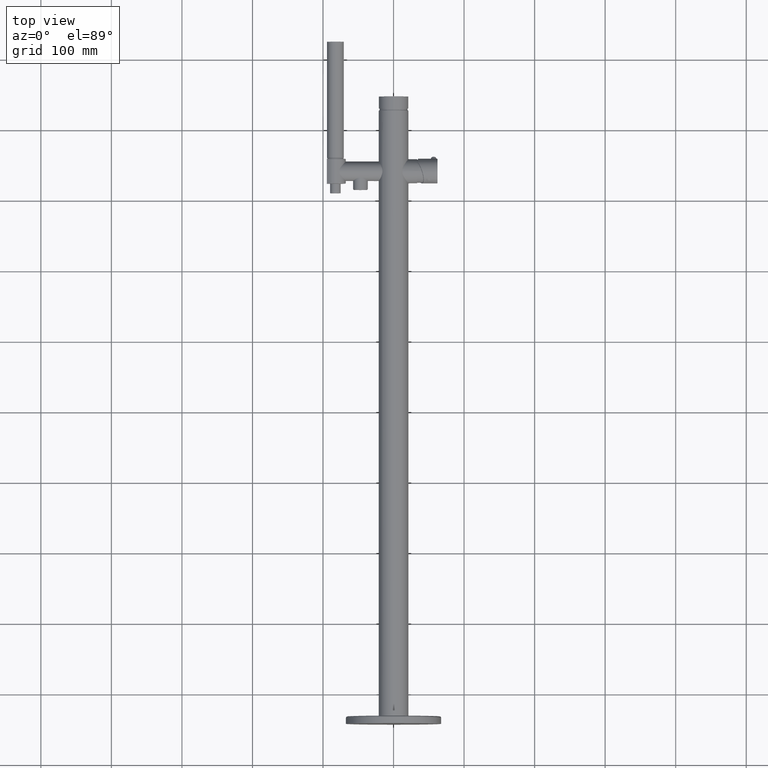
[diagram: clean part render]
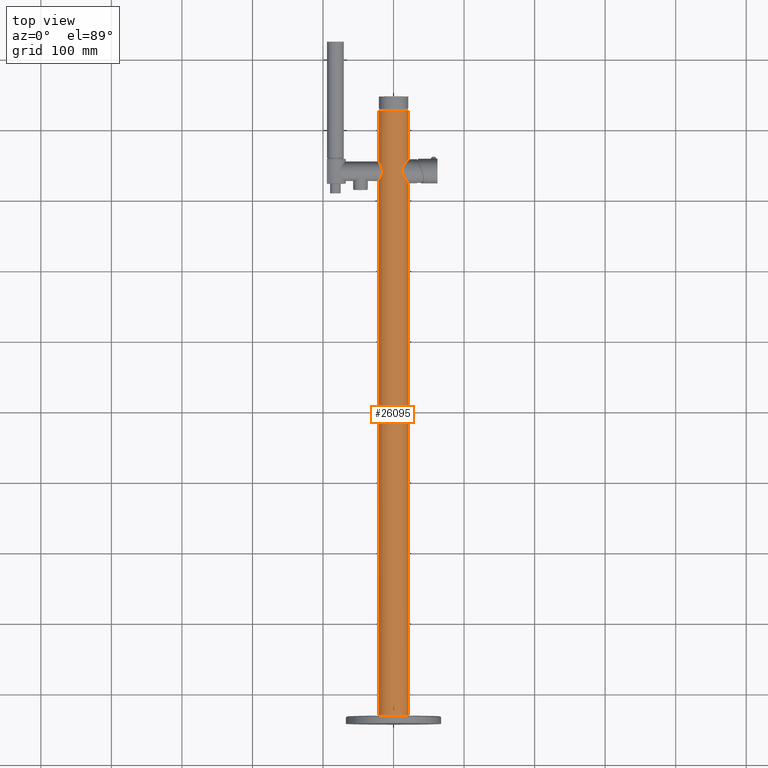
[diagram: same view with one face highlighted and labeled with its STEP entity id]
A machine part, top view. The second image highlights one B-rep face of the part: STEP entity #26095.
In plain terms, the highlighted cylindrical surface (edge-blend (fillet) strip) has radius 21 mm, axis along (0, -1, 0).
Its self-contained STEP definition (entity closure, byte-faithful):
#10192=CARTESIAN_POINT('',(0.E0,6.45E1,0.E0));
#10193=DIRECTION('',(0.E0,-1.E0,0.E0));
#10194=DIRECTION('',(1.E0,0.E0,0.E0));
#10195=AXIS2_PLACEMENT_3D('',#10192,#10193,#10194);
#10197=CARTESIAN_POINT('',(-2.1E1,8.237257359313E2,0.E0));
#10198=CARTESIAN_POINT('',(-2.1E1,8.237257359313E2,1.194688515093E-1));
#10199=CARTESIAN_POINT('',(-2.099796158246E1,8.237288263789E2,
3.584826285599E-1));
#10200=CARTESIAN_POINT('',(-2.098877035781E1,8.237427664905E2,
7.172506742478E-1));
#10201=CARTESIAN_POINT('',(-2.097345072110E1,8.237660190770E2,
1.075789666941E0));
#10202=CARTESIAN_POINT('',(-2.095198431254E1,8.237986387286E2,
1.434366022529E0));
#10203=CARTESIAN_POINT('',(-2.092436405059E1,8.238406741350E2,
1.792785321803E0));
#10204=CARTESIAN_POINT('',(-2.089059177179E1,8.238921719107E2,
2.150899778978E0));
#10205=CARTESIAN_POINT('',(-2.085062134319E1,8.239532641663E2,
2.508966122048E0));
#10206=CARTESIAN_POINT('',(-2.080444853463E1,8.240240321877E2,
2.866775812998E0));
#10207=CARTESIAN_POINT('',(-2.075200650268E1,8.241046675400E2,
3.224577579985E0));
#10208=CARTESIAN_POINT('',(-2.069331593232E1,8.241952429975E2,
3.581958538787E0));
#10209=CARTESIAN_POINT('',(-2.062841164650E1,8.242958246734E2,
3.938592802111E0));
#10210=CARTESIAN_POINT('',(-2.055722208176E1,8.244066615892E2,
4.294722076045E0));
#10211=CARTESIAN_POINT('',(-2.047978833567E1,8.245278474956E2,
4.649991556038E0));
#10212=CARTESIAN_POINT('',(-2.039605553244E1,8.246596478786E2,
5.004517974205E0));
#10213=CARTESIAN_POINT('',(-2.030610684259E1,8.248021352261E2,
5.357831871324E0));
#10214=CARTESIAN_POINT('',(-2.020995137122E1,8.249555233275E2,
5.709842969902E0));
#10215=CARTESIAN_POINT('',(-2.010759010195E1,8.251200698188E2,
6.060469091842E0));
#10216=CARTESIAN_POINT('',(-1.999919192236E1,8.252957928208E2,
6.409113253447E0));
#10217=CARTESIAN_POINT('',(-1.988481666124E1,8.254829181888E2,
6.755620257362E0));
#10218=CARTESIAN_POINT('',(-1.976460063044E1,8.256815853498E2,
7.099629064757E0));
#10219=CARTESIAN_POINT('',(-1.963874654347E1,8.258918617833E2,
7.440668383378E0));
#10220=CARTESIAN_POINT('',(-1.950747967904E1,8.261138173063E2,
7.778288839666E0));
#10221=CARTESIAN_POINT('',(-1.937109601327E1,8.263474436919E2,
8.111948309642E0));
#10222=CARTESIAN_POINT('',(-1.922990369334E1,8.265927562648E2,
8.441163339024E0));
#10223=CARTESIAN_POINT('',(-1.908436670427E1,8.268495407573E2,
8.765194253950E0));
#10224=CARTESIAN_POINT('',(-1.893481785334E1,8.271178582125E2,
9.083693233710E0));
#10225=CARTESIAN_POINT('',(-1.878186821956E1,8.273973194503E2,
9.395802645858E0));
#10226=CARTESIAN_POINT('',(-1.862622879384E1,8.276873710183E2,
9.700618455581E0));
#10227=CARTESIAN_POINT('',(-1.846843012631E1,8.279878198431E2,
9.997704929382E0));
#10228=CARTESIAN_POINT('',(-1.830917631141E1,8.282981825065E2,
1.028637173554E1));
#10229=CARTESIAN_POINT('',(-1.814950951533E1,8.286173027336E2,
1.056545417331E1));
#10230=CARTESIAN_POINT('',(-1.799022637881E1,8.289444635714E2,
1.083435962481E1));
#10231=CARTESIAN_POINT('',(-1.783203173289E1,8.292791290467E2,
1.109270861491E1));
#10232=CARTESIAN_POINT('',(-1.767594011863E1,8.296200611560E2,
1.133968681277E1));
#10233=CARTESIAN_POINT('',(-1.752278566732E1,8.299663090529E2,
1.157484830522E1));
#10234=CARTESIAN_POINT('',(-1.737342162065E1,8.303167834794E2,
1.179775696746E1));
#10235=CARTESIAN_POINT('',(-1.722869962031E1,8.306702454429E2,
1.200801846552E1));
#10236=CARTESIAN_POINT('',(-1.708914837740E1,8.310261022629E2,
1.220571377379E1));
#10237=CARTESIAN_POINT('',(-1.695535821811E1,8.313835121773E2,
1.239080916465E1));
#10238=CARTESIAN_POINT('',(-1.682802520557E1,8.317411484142E2,
1.256311503409E1));
#10239=CARTESIAN_POINT('',(-1.670752992834E1,8.320983335592E2,
1.272284777265E1));
#10240=CARTESIAN_POINT('',(-1.659411011515E1,8.324546832130E2,
1.287036112433E1));
#10241=CARTESIAN_POINT('',(-1.648797992562E1,8.328097835484E2,
1.300598366890E1));
#10242=CARTESIAN_POINT('',(-1.638938914567E1,8.331629212574E2,
1.312994962773E1));
#10243=CARTESIAN_POINT('',(-1.629833034803E1,8.335141602502E2,
1.324276390136E1));
#10244=CARTESIAN_POINT('',(-1.621491260163E1,8.338630439648E2,
1.334473038730E1));
#10245=CARTESIAN_POINT('',(-1.613907860447E1,8.342096648151E2,
1.343630753004E1));
#10246=CARTESIAN_POINT('',(-1.607077870117E1,8.345540967664E2,
1.351789226133E1));
#10247=CARTESIAN_POINT('',(-1.601000620308E1,8.348960962799E2,
1.358978601703E1));
#10248=CARTESIAN_POINT('',(-1.595661780658E1,8.352361501497E2,
1.365240964511E1));
#10249=CARTESIAN_POINT('',(-1.591056693037E1,8.355742563393E2,
1.370603002170E1));
#10250=CARTESIAN_POINT('',(-1.587178068864E1,8.359104904013E2,
1.375091028748E1));
#10251=CARTESIAN_POINT('',(-1.584014342456E1,8.362454575089E2,
1.378732965030E1));
#10252=CARTESIAN_POINT('',(-1.581562253518E1,8.365791184521E2,
1.381544122905E1));
#10253=CARTESIAN_POINT('',(-1.579815160217E1,8.369117631268E2,
1.383540926023E1));
#10254=CARTESIAN_POINT('',(-1.578768006284E1,8.372439800277E2,
1.384735315143E1));
#10255=CARTESIAN_POINT('',(-1.578419573960E1,8.375757286827E2,
1.385132335272E1));
#10256=CARTESIAN_POINT('',(-1.578767981168E1,8.379074827926E2,
1.384735343768E1));
#10257=CARTESIAN_POINT('',(-1.579815157936E1,8.382397105148E2,
1.383540928686E1));
#10258=CARTESIAN_POINT('',(-1.581562336539E1,8.385723669431E2,
1.381544027917E1));
#10259=CARTESIAN_POINT('',(-1.584014423465E1,8.389060236311E2,
1.378732871943E1));
#10260=CARTESIAN_POINT('',(-1.587178167344E1,8.392409910103E2,
1.375090915169E1));
#10261=CARTESIAN_POINT('',(-1.591056821915E1,8.395772255966E2,
1.370602852511E1));
#10262=CARTESIAN_POINT('',(-1.595661872071E1,8.399153279414E2,
1.365240857711E1));
#10263=CARTESIAN_POINT('',(-1.601000784883E1,8.402553855452E2,
1.358978408066E1));
#10264=CARTESIAN_POINT('',(-1.607078046435E1,8.405973843426E2,
1.351789016317E1));
#10265=CARTESIAN_POINT('',(-1.613908009920E1,8.409418143093E2,
1.343630573843E1));
#10266=CARTESIAN_POINT('',(-1.621491536908E1,8.412884399919E2,
1.334472702578E1));
#10267=CARTESIAN_POINT('',(-1.629833227742E1,8.416373192736E2,
1.324276152416E1));
#10268=CARTESIAN_POINT('',(-1.638939158620E1,8.419885597329E2,
1.312994658672E1));
#10269=CARTESIAN_POINT('',(-1.648798266259E1,8.423416977302E2,
1.300598019596E1));
#10270=CARTESIAN_POINT('',(-1.659411245202E1,8.426967962606E2,
1.287035811732E1));
#10271=CARTESIAN_POINT('',(-1.670753401646E1,8.430531508504E2,
1.272284241718E1));
#10272=CARTESIAN_POINT('',(-1.682802992428E1,8.434103370534E2,
1.256310871664E1));
#10273=CARTESIAN_POINT('',(-1.695536325508E1,8.437679734797E2,
1.239080227580E1));
#10274=CARTESIAN_POINT('',(-1.708915400272E1,8.441253843151E2,
1.220570591218E1));
#10275=CARTESIAN_POINT('',(-1.722870706090E1,8.444812450385E2,
1.200800781591E1));
#10276=CARTESIAN_POINT('',(-1.737342990497E1,8.448347081628E2,
1.179774475430E1));
#10277=CARTESIAN_POINT('',(-1.752279225548E1,8.451851779710E2,
1.157483833505E1));
#10278=CARTESIAN_POINT('',(-1.767594817993E1,8.455314286187E2,
1.133967425329E1));
#10279=CARTESIAN_POINT('',(-1.783203865851E1,8.458723576873E2,
1.109269748091E1));
#10280=CARTESIAN_POINT('',(-1.799023476601E1,8.462070258011E2,
1.083434573205E1));
#10281=CARTESIAN_POINT('',(-1.814951819578E1,8.465341866872E2,
1.056543924357E1));
#10282=CARTESIAN_POINT('',(-1.830918320002E1,8.468533029223E2,
1.028635944633E1));
#10283=CARTESIAN_POINT('',(-1.846843642521E1,8.471636641495E2,
9.997693296615E0));
#10284=CARTESIAN_POINT('',(-1.862623503392E1,8.474641125908E2,
9.700606471643E0));
#10285=CARTESIAN_POINT('',(-1.878187320731E1,8.477541615836E2,
9.395792608375E0));
#10286=CARTESIAN_POINT('',(-1.893482052053E1,8.480336184772E2,
9.083687674859E0));
#10287=CARTESIAN_POINT('',(-1.908437123185E1,8.483019391759E2,
8.765184449733E0));
#10288=CARTESIAN_POINT('',(-1.922990842945E1,8.485587238894E2,
8.441152560309E0));
#10289=CARTESIAN_POINT('',(-1.937110144348E1,8.488040375446E2,
8.111935381931E0));
#10290=CARTESIAN_POINT('',(-1.950748537294E1,8.490376642426E2,
7.778274550030E0));
#10291=CARTESIAN_POINT('',(-1.963875156252E1,8.492596185134E2,
7.440655140193E0));
#10292=CARTESIAN_POINT('',(-1.976460569597E1,8.494698949259E2,
7.099614937618E0));
#10293=CARTESIAN_POINT('',(-1.988482081503E1,8.496685605051E2,
6.755608063361E0));
#10294=CARTESIAN_POINT('',(-1.999919717132E1,8.498556875902E2,
6.409096889421E0));
#10295=CARTESIAN_POINT('',(-2.010759402003E1,8.500314083637E2,
6.060456037503E0));
#10296=CARTESIAN_POINT('',(-2.020995540329E1,8.501959549942E2,
5.709828759794E0));
#10297=CARTESIAN_POINT('',(-2.030611104187E1,8.503493433105E2,
5.357815949538E0));
#10298=CARTESIAN_POINT('',(-2.039605920773E1,8.504918297868E2,
5.004503000739E0));
#10299=CARTESIAN_POINT('',(-2.047979213566E1,8.506236303314E2,
4.649974856330E0));
#10300=CARTESIAN_POINT('',(-2.055722572788E1,8.507448159648E2,
4.294704660707E0));
#10301=CARTESIAN_POINT('',(-2.062841535880E1,8.508556529553E2,
3.938573395864E0));
#10302=CARTESIAN_POINT('',(-2.069331895146E1,8.509562335314E2,
3.581940900032E0));
#10303=CARTESIAN_POINT('',(-2.075200800755E1,8.510468066384E2,
3.224567635087E0));
#10304=CARTESIAN_POINT('',(-2.080444933102E1,8.511274408969E2,
2.866769939129E0));
#10305=CARTESIAN_POINT('',(-2.085062199619E1,8.511982086960E2,
2.508960786728E0));
#10306=CARTESIAN_POINT('',(-2.089059280218E1,8.512593015255E2,
2.150890107117E0));
#10307=CARTESIAN_POINT('',(-2.092436518179E1,8.513107994505E2,
1.792771987223E0));
#10308=CARTESIAN_POINT('',(-2.095198480717E1,8.513528338858E2,
1.434358423796E0));
#10309=CARTESIAN_POINT('',(-2.097345103258E1,8.513854532586E2,
1.075783423320E0));
#10310=CARTESIAN_POINT('',(-2.098877043489E1,8.514087054889E2,
7.172478123593E-1));
#10311=CARTESIAN_POINT('',(-2.099796158114E1,8.514226454817E2,
3.584822203011E-1));
#10312=CARTESIAN_POINT('',(-2.1E1,8.514257359313E2,1.194688829872E-1));
#10313=CARTESIAN_POINT('',(-2.1E1,8.514257359313E2,0.E0));
#10315=CARTESIAN_POINT('',(2.1E1,8.546757359313E2,3.477275162954E-14));
#10316=CARTESIAN_POINT('',(2.1E1,8.546757359313E2,1.307847896728E-1));
#10317=CARTESIAN_POINT('',(2.099755689081E1,8.546727357554E2,
3.924803590351E-1));
#10318=CARTESIAN_POINT('',(2.098653692197E1,8.546592006586E2,
7.853556378513E-1));
#10319=CARTESIAN_POINT('',(2.096815567047E1,8.546366161400E2,1.178150633188E0));
#10320=CARTESIAN_POINT('',(2.094238706865E1,8.546049379944E2,1.571048464448E0));
#10321=CARTESIAN_POINT('',(2.090919392466E1,8.545641032045E2,1.964057564334E0));
#10322=CARTESIAN_POINT('',(2.086857358564E1,8.545140859441E2,2.356839570341E0));
#10323=CARTESIAN_POINT('',(2.082046869812E1,8.544547875357E2,2.749629385181E0));
#10324=CARTESIAN_POINT('',(2.076476071294E1,8.543860276083E2,3.142840903767E0));
#10325=CARTESIAN_POINT('',(2.070142468317E1,8.543077346132E2,3.536109833773E0));
#10326=CARTESIAN_POINT('',(2.063038796288E1,8.542197711623E2,3.929446723815E0));
#10327=CARTESIAN_POINT('',(2.055155974956E1,8.541219694512E2,4.322875052143E0));
#10328=CARTESIAN_POINT('',(2.046489376307E1,8.540142084778E2,4.716188358554E0));
#10329=CARTESIAN_POINT('',(2.037025032757E1,8.538962415800E2,5.109570415629E0));
#10330=CARTESIAN_POINT('',(2.026756282035E1,8.537679023326E2,5.502840846990E0));
#10331=CARTESIAN_POINT('',(2.015666013482E1,8.536288816365E2,5.896186843871E0));
#10332=CARTESIAN_POINT('',(2.003751577445E1,8.534790377368E2,6.289230561473E0));
#10333=CARTESIAN_POINT('',(1.991014395716E1,8.533182670607E2,6.681554590691E0));
#10334=CARTESIAN_POINT('',(1.977434115537E1,8.531461749035E2,7.073406236354E0));
#10335=CARTESIAN_POINT('',(1.963005529220E1,8.529625379829E2,7.464524030178E0));
#10336=CARTESIAN_POINT('',(1.947731099101E1,8.527672115098E2,7.854498310913E0));
#10337=CARTESIAN_POINT('',(1.931594044366E1,8.525597807141E2,8.243409291920E0));
#10338=CARTESIAN_POINT('',(1.914608823975E1,8.523402059371E2,8.630593923933E0));
#10339=CARTESIAN_POINT('',(1.896765953108E1,8.521081110725E2,9.016001277551E0));
#10340=CARTESIAN_POINT('',(1.878067509191E1,8.518632345964E2,9.399313949336E0));
#10341=CARTESIAN_POINT('',(1.858523865872E1,8.516053869335E2,9.780089072686E0));
#10342=CARTESIAN_POINT('',(1.838150749923E1,8.513344098046E2,1.015784154043E1));
#10343=CARTESIAN_POINT('',(1.816958472825E1,8.510500265889E2,1.053223497975E1));
#10344=CARTESIAN_POINT('',(1.794984033148E1,8.507522679687E2,1.090252298396E1));
#10345=CARTESIAN_POINT('',(1.772272464919E1,8.504412274476E2,1.126794797392E1));
#10346=CARTESIAN_POINT('',(1.748858981406E1,8.501168086410E2,1.162800645046E1));
#10347=CARTESIAN_POINT('',(1.724793530734E1,8.497790557108E2,1.198205273728E1));
#10348=CARTESIAN_POINT('',(1.700130970671E1,8.494280092979E2,1.232945591340E1));
#10349=CARTESIAN_POINT('',(1.675010623432E1,8.490648642013E2,1.266856819236E1));
#10350=CARTESIAN_POINT('',(1.649536293796E1,8.486902882198E2,1.299846455922E1));
#10351=CARTESIAN_POINT('',(1.623817668052E1,8.483049939513E2,1.331828669912E1));
#10352=CARTESIAN_POINT('',(1.597972767859E1,8.479097921971E2,1.362722659418E1));
#10353=CARTESIAN_POINT('',(1.572102342048E1,8.475051892019E2,1.392479690896E1));
#10354=CARTESIAN_POINT('',(1.546383441872E1,8.470928740014E2,1.420976568741E1));
#10355=CARTESIAN_POINT('',(1.520995150890E1,8.466746638065E2,1.448108267412E1));
#10356=CARTESIAN_POINT('',(1.496109357755E1,8.462523695775E2,1.473792628217E1));
#10357=CARTESIAN_POINT('',(1.471932523912E1,8.458285910039E2,1.497926779866E1));
#10358=CARTESIAN_POINT('',(1.448603075904E1,8.454049931427E2,1.520487063265E1));
#10359=CARTESIAN_POINT('',(1.426262563109E1,8.449835310188E2,1.541450350604E1));
#10360=CARTESIAN_POINT('',(1.405000609615E1,8.445654471095E2,1.560843131215E1));
#10361=CARTESIAN_POINT('',(1.384908081920E1,8.441522476146E2,1.578687173457E1));
#10362=CARTESIAN_POINT('',(1.366045679468E1,8.437451260254E2,1.595026999982E1));
#10363=CARTESIAN_POINT('',(1.348438399585E1,8.433447444761E2,1.609930709689E1));
#10364=CARTESIAN_POINT('',(1.332112449824E1,8.429520323080E2,1.623457271914E1));
#10365=CARTESIAN_POINT('',(1.317045096639E1,8.425669560767E2,1.635697603703E1));
#10366=CARTESIAN_POINT('',(1.303214234600E1,8.421895652672E2,1.646732287725E1));
#10367=CARTESIAN_POINT('',(1.290589582914E1,8.418197909718E2,1.656639961787E1));
#10368=CARTESIAN_POINT('',(1.279126999844E1,8.414571829917E2,1.665501988707E1));
#10369=CARTESIAN_POINT('',(1.272236325007E1,8.412200783379E2,1.670757758447E1));
#10370=CARTESIAN_POINT('',(1.268974979235E1,8.411027388787E2,1.673231156201E1));
#10372=DIRECTION('',(0.E0,-1.E0,-1.108018650664E-14));
#10373=VECTOR('',#10372,7.054005894827E0);
#10374=CARTESIAN_POINT('',(1.268974979235E1,8.411027388787E2,1.673231156201E1));
#10375=LINE('',#10374,#10373);
#10376=CARTESIAN_POINT('',(1.268974979235E1,8.340487329839E2,1.673231156201E1));
#10377=CARTESIAN_POINT('',(1.272236431236E1,8.339313897027E2,1.670757677883E1));
#10378=CARTESIAN_POINT('',(1.279127242091E1,8.336942809229E2,1.665501802661E1));
#10379=CARTESIAN_POINT('',(1.290589613845E1,8.333316802354E2,1.656639936293E1));
#10380=CARTESIAN_POINT('',(1.303213890299E1,8.329619165063E2,1.646732558859E1));
#10381=CARTESIAN_POINT('',(1.317044519240E1,8.325845311268E2,1.635698067450E1));
#10382=CARTESIAN_POINT('',(1.332111652966E1,8.321994593266E2,1.623457925073E1));
#10383=CARTESIAN_POINT('',(1.348437681869E1,8.318067440150E2,1.609931312476E1));
#10384=CARTESIAN_POINT('',(1.366045346824E1,8.314063530491E2,1.595027287288E1));
#10385=CARTESIAN_POINT('',(1.384908055892E1,8.309992247007E2,1.578687198514E1));
#10386=CARTESIAN_POINT('',(1.405000739857E1,8.305860221849E2,1.560843012654E1));
#10387=CARTESIAN_POINT('',(1.426262351004E1,8.301679449783E2,1.541450545120E1));
#10388=CARTESIAN_POINT('',(1.448602983931E1,8.297464803491E2,1.520487153597E1));
#10389=CARTESIAN_POINT('',(1.471932687405E1,8.293228779142E2,1.497926620949E1));
#10390=CARTESIAN_POINT('',(1.496109446319E1,8.288991008296E2,1.473792534104E1));
#10391=CARTESIAN_POINT('',(1.520994713248E1,8.284768154412E2,1.448108721437E1));
#10392=CARTESIAN_POINT('',(1.546382962878E1,8.280586055703E2,1.420977096008E1));
#10393=CARTESIAN_POINT('',(1.572102616683E1,8.276462782237E2,1.392479390704E1));
#10394=CARTESIAN_POINT('',(1.597973329281E1,8.272416710037E2,1.362721999389E1));
#10395=CARTESIAN_POINT('',(1.623817803427E1,8.268464759238E2,1.331828495637E1));
#10396=CARTESIAN_POINT('',(1.649535805002E1,8.264611909586E2,1.299847064188E1));
#10397=CARTESIAN_POINT('',(1.675009491593E1,8.260866241976E2,1.266858306540E1));
#10398=CARTESIAN_POINT('',(1.700129657556E1,8.257234813907E2,1.232947402989E1));
#10399=CARTESIAN_POINT('',(1.724792378786E1,8.253724324276E2,1.198206932384E1));
#10400=CARTESIAN_POINT('',(1.748857682802E1,8.250346813441E2,1.162802591470E1));
#10401=CARTESIAN_POINT('',(1.772271011911E1,8.247102644243E2,1.126797083606E1));
#10402=CARTESIAN_POINT('',(1.794982839560E1,8.243992201405E2,1.090254268517E1));
#10403=CARTESIAN_POINT('',(1.816957382789E1,8.241014599698E2,1.053225378638E1));
#10404=CARTESIAN_POINT('',(1.838149695040E1,8.238170761500E2,1.015786061963E1));
#10405=CARTESIAN_POINT('',(1.858522805803E1,8.235460989704E2,9.780109211100E0));
#10406=CARTESIAN_POINT('',(1.878066523519E1,8.232882502185E2,9.399333669142E0));
#10407=CARTESIAN_POINT('',(1.896765048866E1,8.230433725919E2,9.016020283364E0));
#10408=CARTESIAN_POINT('',(1.914607899468E1,8.228112779113E2,8.630614455387E0));
#10409=CARTESIAN_POINT('',(1.931593323180E1,8.225917004407E2,8.243426250748E0));
#10410=CARTESIAN_POINT('',(1.947730438431E1,8.223842688233E2,7.854514679064E0));
#10411=CARTESIAN_POINT('',(1.963004867332E1,8.221889423236E2,7.464541422722E0));
#10412=CARTESIAN_POINT('',(1.977433436936E1,8.220053055785E2,7.073425137714E0));
#10413=CARTESIAN_POINT('',(1.991013640391E1,8.218332143541E2,6.681577089333E0));
#10414=CARTESIAN_POINT('',(2.003750987819E1,8.216724415513E2,6.289249479957E0));
#10415=CARTESIAN_POINT('',(2.015665613644E1,8.215225952445E2,5.896200611166E0));
#10416=CARTESIAN_POINT('',(2.026755980023E1,8.213835733095E2,5.502852011043E0));
#10417=CARTESIAN_POINT('',(2.037024761617E1,8.212552336669E2,5.109581193830E0));
#10418=CARTESIAN_POINT('',(2.046489059953E1,8.211372673238E2,4.716201967749E0));
#10419=CARTESIAN_POINT('',(2.055155638561E1,8.210295065890E2,4.322891104337E0));
#10420=CARTESIAN_POINT('',(2.063038573414E1,8.209317034622E2,3.929458506841E0));
#10421=CARTESIAN_POINT('',(2.070142264647E1,8.208437397690E2,3.536121804122E0));
#10422=CARTESIAN_POINT('',(2.076475954077E1,8.207654457017E2,3.142848838569E0));
#10423=CARTESIAN_POINT('',(2.082046783952E1,8.206966853860E2,2.749635779908E0));
#10424=CARTESIAN_POINT('',(2.086857253735E1,8.206373872099E2,2.356848872147E0));
#10425=CARTESIAN_POINT('',(2.090919354077E1,8.205873691303E2,1.964062089241E0));
#10426=CARTESIAN_POINT('',(2.094238703701E1,8.205465339071E2,1.571048906347E0));
#10427=CARTESIAN_POINT('',(2.096815559792E1,8.205148558117E2,1.178152111832E0));
#10428=CARTESIAN_POINT('',(2.098653705525E1,8.204922710402E2,
7.853526369202E-1));
#10429=CARTESIAN_POINT('',(2.099755693461E1,8.204787360534E2,
3.924774058923E-1));
#10430=CARTESIAN_POINT('',(2.1E1,8.204757359313E2,1.307834606473E-1));
#10431=CARTESIAN_POINT('',(2.1E1,8.204757359313E2,-2.837951767113E-14));
#10664=DIRECTION('',(0.E0,1.E0,0.E0));
#10665=VECTOR('',#10664,7.559757359313E2);
#10666=CARTESIAN_POINT('',(2.1E1,6.45E1,0.E0));
#10667=LINE('',#10666,#10665);
#10786=DIRECTION('',(0.E0,1.E0,0.E0));
#10787=VECTOR('',#10786,6.882426406871E1);
#10788=CARTESIAN_POINT('',(2.1E1,8.546757359313E2,3.477275162954E-14));
#10789=LINE('',#10788,#10787);
#10790=DIRECTION('',(0.E0,1.E0,0.E0));
#10791=VECTOR('',#10790,7.207426406871E1);
#10792=CARTESIAN_POINT('',(-2.1E1,8.514257359313E2,0.E0));
#10793=LINE('',#10792,#10791);
#10912=DIRECTION('',(0.E0,-1.E0,0.E0));
#10913=VECTOR('',#10912,7.592257359313E2);
#10914=CARTESIAN_POINT('',(-2.1E1,8.237257359313E2,0.E0));
#10915=LINE('',#10914,#10913);
#15218=CARTESIAN_POINT('',(1.622963270570E-13,9.235E2,0.E0));
#15219=DIRECTION('',(0.E0,-1.E0,0.E0));
#15220=DIRECTION('',(1.E0,0.E0,0.E0));
#15221=AXIS2_PLACEMENT_3D('',#15218,#15219,#15220);
#18798=CARTESIAN_POINT('',(2.1E1,9.235E2,0.E0));
#18799=CARTESIAN_POINT('',(-2.1E1,9.235E2,0.E0));
#18800=VERTEX_POINT('',#18798);
#18801=VERTEX_POINT('',#18799);
#18832=VERTEX_POINT('',#10315);
#18833=VERTEX_POINT('',#10370);
#18834=VERTEX_POINT('',#10376);
#18835=VERTEX_POINT('',#10431);
#18951=VERTEX_POINT('',#10197);
#18952=VERTEX_POINT('',#10313);
#20286=CARTESIAN_POINT('',(2.1E1,6.45E1,0.E0));
#20287=CARTESIAN_POINT('',(-2.1E1,6.45E1,0.E0));
#20288=VERTEX_POINT('',#20286);
#20289=VERTEX_POINT('',#20287);
#26069=CARTESIAN_POINT('',(1.504478692753E-13,8.59E2,0.E0));
#26070=DIRECTION('',(0.E0,-1.E0,0.E0));
#26071=DIRECTION('',(-1.E0,0.E0,0.E0));
#26072=AXIS2_PLACEMENT_3D('',#26069,#26070,#26071);
#26073=CYLINDRICAL_SURFACE('',#26072,2.1E1);
#26075=ORIENTED_EDGE('',*,*,#26074,.T.);
#26077=ORIENTED_EDGE('',*,*,#26076,.F.);
#26078=ORIENTED_EDGE('',*,*,#26045,.T.);
#26080=ORIENTED_EDGE('',*,*,#26079,.T.);
#26082=ORIENTED_EDGE('',*,*,#26081,.F.);
#26084=ORIENTED_EDGE('',*,*,#26083,.F.);
#26086=ORIENTED_EDGE('',*,*,#26085,.T.);
#26088=ORIENTED_EDGE('',*,*,#26087,.T.);
#26090=ORIENTED_EDGE('',*,*,#26089,.T.);
#26092=ORIENTED_EDGE('',*,*,#26091,.F.);
#26093=EDGE_LOOP('',(#26075,#26077,#26078,#26080,#26082,#26084,#26086,#26088,
#26090,#26092));
#26094=FACE_OUTER_BOUND('',#26093,.F.);
#26095=ADVANCED_FACE('',(#26094),#26073,.T.);
#10196=CIRCLE('',#10195,2.1E1);
#10314=B_SPLINE_CURVE_WITH_KNOTS('',3,(#10197,#10198,#10199,#10200,#10201,
#10202,#10203,#10204,#10205,#10206,#10207,#10208,#10209,#10210,#10211,#10212,
#10213,#10214,#10215,#10216,#10217,#10218,#10219,#10220,#10221,#10222,#10223,
#10224,#10225,#10226,#10227,#10228,#10229,#10230,#10231,#10232,#10233,#10234,
#10235,#10236,#10237,#10238,#10239,#10240,#10241,#10242,#10243,#10244,#10245,
#10246,#10247,#10248,#10249,#10250,#10251,#10252,#10253,#10254,#10255,#10256,
#10257,#10258,#10259,#10260,#10261,#10262,#10263,#10264,#10265,#10266,#10267,
#10268,#10269,#10270,#10271,#10272,#10273,#10274,#10275,#10276,#10277,#10278,
#10279,#10280,#10281,#10282,#10283,#10284,#10285,#10286,#10287,#10288,#10289,
#10290,#10291,#10292,#10293,#10294,#10295,#10296,#10297,#10298,#10299,#10300,
#10301,#10302,#10303,#10304,#10305,#10306,#10307,#10308,#10309,#10310,#10311,
#10312,#10313),.UNSPECIFIED.,.F.,.F.,(4,1,1,1,1,1,1,1,1,1,1,1,1,1,1,1,1,1,1,1,1,
1,1,1,1,1,1,1,1,1,1,1,1,1,1,1,1,1,1,1,1,1,1,1,1,1,1,1,1,1,1,1,1,1,1,1,1,1,1,1,1,
1,1,1,1,1,1,1,1,1,1,1,1,1,1,1,1,1,1,1,1,1,1,1,1,1,1,1,1,1,1,1,1,1,1,1,1,1,1,1,1,
1,1,1,1,1,1,1,1,1,1,1,1,1,4),(0.E0,8.771929824561E-3,1.754385964912E-2,
2.631578947368E-2,3.508771929825E-2,4.385964912281E-2,5.263157894737E-2,
6.140350877193E-2,7.017543859649E-2,7.894736842105E-2,8.771929824561E-2,
9.649122807018E-2,1.052631578947E-1,1.140350877193E-1,1.228070175439E-1,
1.315789473684E-1,1.403508771930E-1,1.491228070175E-1,1.578947368421E-1,
1.666666666667E-1,1.754385964912E-1,1.842105263158E-1,1.929824561404E-1,
2.017543859649E-1,2.105263157895E-1,2.192982456140E-1,2.280701754386E-1,
2.368421052632E-1,2.456140350877E-1,2.543859649123E-1,2.631578947368E-1,
2.719298245614E-1,2.807017543860E-1,2.894736842105E-1,2.982456140351E-1,
3.070175438596E-1,3.157894736842E-1,3.245614035088E-1,3.333333333333E-1,
3.421052631579E-1,3.508771929825E-1,3.596491228070E-1,3.684210526316E-1,
3.771929824561E-1,3.859649122807E-1,3.947368421053E-1,4.035087719298E-1,
4.122807017544E-1,4.210526315789E-1,4.298245614035E-1,4.385964912281E-1,
4.473684210526E-1,4.561403508772E-1,4.649122807018E-1,4.736842105263E-1,
4.824561403509E-1,4.912280701754E-1,5.E-1,5.087719298246E-1,5.175438596491E-1,
5.263157894737E-1,5.350877192982E-1,5.438596491228E-1,5.526315789474E-1,
5.614035087719E-1,5.701754385965E-1,5.789473684211E-1,5.877192982456E-1,
5.964912280702E-1,6.052631578947E-1,6.140350877193E-1,6.228070175439E-1,
6.315789473684E-1,6.403508771930E-1,6.491228070175E-1,6.578947368421E-1,
6.666666666667E-1,6.754385964912E-1,6.842105263158E-1,6.929824561404E-1,
7.017543859649E-1,7.105263157895E-1,7.192982456140E-1,7.280701754386E-1,
7.368421052632E-1,7.456140350877E-1,7.543859649123E-1,7.631578947368E-1,
7.719298245614E-1,7.807017543860E-1,7.894736842105E-1,7.982456140351E-1,
8.070175438596E-1,8.157894736842E-1,8.245614035088E-1,8.333333333333E-1,
8.421052631579E-1,8.508771929825E-1,8.596491228070E-1,8.684210526316E-1,
8.771929824561E-1,8.859649122807E-1,8.947368421053E-1,9.035087719298E-1,
9.122807017544E-1,9.210526315789E-1,9.298245614035E-1,9.385964912281E-1,
9.473684210526E-1,9.561403508772E-1,9.649122807018E-1,9.736842105263E-1,
9.824561403509E-1,9.912280701754E-1,1.E0),.UNSPECIFIED.);
#10371=B_SPLINE_CURVE_WITH_KNOTS('',3,(#10315,#10316,#10317,#10318,#10319,
#10320,#10321,#10322,#10323,#10324,#10325,#10326,#10327,#10328,#10329,#10330,
#10331,#10332,#10333,#10334,#10335,#10336,#10337,#10338,#10339,#10340,#10341,
#10342,#10343,#10344,#10345,#10346,#10347,#10348,#10349,#10350,#10351,#10352,
#10353,#10354,#10355,#10356,#10357,#10358,#10359,#10360,#10361,#10362,#10363,
#10364,#10365,#10366,#10367,#10368,#10369,#10370),.UNSPECIFIED.,.F.,.F.,(4,1,1,
1,1,1,1,1,1,1,1,1,1,1,1,1,1,1,1,1,1,1,1,1,1,1,1,1,1,1,1,1,1,1,1,1,1,1,1,1,1,1,1,
1,1,1,1,1,1,1,1,1,1,4),(0.E0,1.886792452830E-2,3.773584905660E-2,
5.660377358491E-2,7.547169811321E-2,9.433962264151E-2,1.132075471698E-1,
1.320754716981E-1,1.509433962264E-1,1.698113207547E-1,1.886792452830E-1,
2.075471698113E-1,2.264150943396E-1,2.452830188679E-1,2.641509433962E-1,
2.830188679245E-1,3.018867924528E-1,3.207547169811E-1,3.396226415094E-1,
3.584905660377E-1,3.773584905660E-1,3.962264150943E-1,4.150943396226E-1,
4.339622641509E-1,4.528301886792E-1,4.716981132075E-1,4.905660377358E-1,
5.094339622642E-1,5.283018867925E-1,5.471698113208E-1,5.660377358491E-1,
5.849056603774E-1,6.037735849057E-1,6.226415094340E-1,6.415094339623E-1,
6.603773584906E-1,6.792452830189E-1,6.981132075472E-1,7.169811320755E-1,
7.358490566038E-1,7.547169811321E-1,7.735849056604E-1,7.924528301887E-1,
8.113207547170E-1,8.301886792453E-1,8.490566037736E-1,8.679245283019E-1,
8.867924528302E-1,9.056603773585E-1,9.245283018868E-1,9.433962264151E-1,
9.622641509434E-1,9.811320754717E-1,1.E0),.UNSPECIFIED.);
#10432=B_SPLINE_CURVE_WITH_KNOTS('',3,(#10376,#10377,#10378,#10379,#10380,
#10381,#10382,#10383,#10384,#10385,#10386,#10387,#10388,#10389,#10390,#10391,
#10392,#10393,#10394,#10395,#10396,#10397,#10398,#10399,#10400,#10401,#10402,
#10403,#10404,#10405,#10406,#10407,#10408,#10409,#10410,#10411,#10412,#10413,
#10414,#10415,#10416,#10417,#10418,#10419,#10420,#10421,#10422,#10423,#10424,
#10425,#10426,#10427,#10428,#10429,#10430,#10431),.UNSPECIFIED.,.F.,.F.,(4,1,1,
1,1,1,1,1,1,1,1,1,1,1,1,1,1,1,1,1,1,1,1,1,1,1,1,1,1,1,1,1,1,1,1,1,1,1,1,1,1,1,1,
1,1,1,1,1,1,1,1,1,1,4),(0.E0,1.886792452830E-2,3.773584905660E-2,
5.660377358491E-2,7.547169811321E-2,9.433962264151E-2,1.132075471698E-1,
1.320754716981E-1,1.509433962264E-1,1.698113207547E-1,1.886792452830E-1,
2.075471698113E-1,2.264150943396E-1,2.452830188679E-1,2.641509433962E-1,
2.830188679245E-1,3.018867924528E-1,3.207547169811E-1,3.396226415094E-1,
3.584905660377E-1,3.773584905660E-1,3.962264150943E-1,4.150943396226E-1,
4.339622641509E-1,4.528301886792E-1,4.716981132075E-1,4.905660377358E-1,
5.094339622642E-1,5.283018867925E-1,5.471698113208E-1,5.660377358491E-1,
5.849056603774E-1,6.037735849057E-1,6.226415094340E-1,6.415094339623E-1,
6.603773584906E-1,6.792452830189E-1,6.981132075472E-1,7.169811320755E-1,
7.358490566038E-1,7.547169811321E-1,7.735849056604E-1,7.924528301887E-1,
8.113207547170E-1,8.301886792453E-1,8.490566037736E-1,8.679245283019E-1,
8.867924528302E-1,9.056603773585E-1,9.245283018868E-1,9.433962264151E-1,
9.622641509434E-1,9.811320754717E-1,1.E0),.UNSPECIFIED.);
#15222=CIRCLE('',#15221,2.1E1);
#26045=EDGE_CURVE('',#18951,#18952,#10314,.T.);
#26074=EDGE_CURVE('',#20288,#20289,#10196,.T.);
#26076=EDGE_CURVE('',#18951,#20289,#10915,.T.);
#26079=EDGE_CURVE('',#18952,#18801,#10793,.T.);
#26081=EDGE_CURVE('',#18800,#18801,#15222,.T.);
#26083=EDGE_CURVE('',#18832,#18800,#10789,.T.);
#26085=EDGE_CURVE('',#18832,#18833,#10371,.T.);
#26087=EDGE_CURVE('',#18833,#18834,#10375,.T.);
#26089=EDGE_CURVE('',#18834,#18835,#10432,.T.);
#26091=EDGE_CURVE('',#20288,#18835,#10667,.T.);